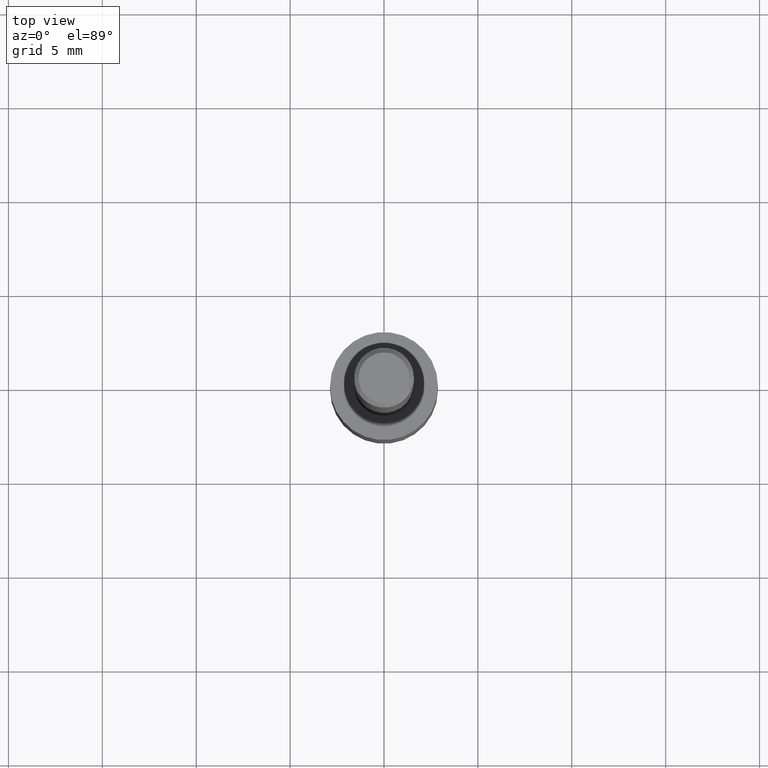
[diagram: clean part render]
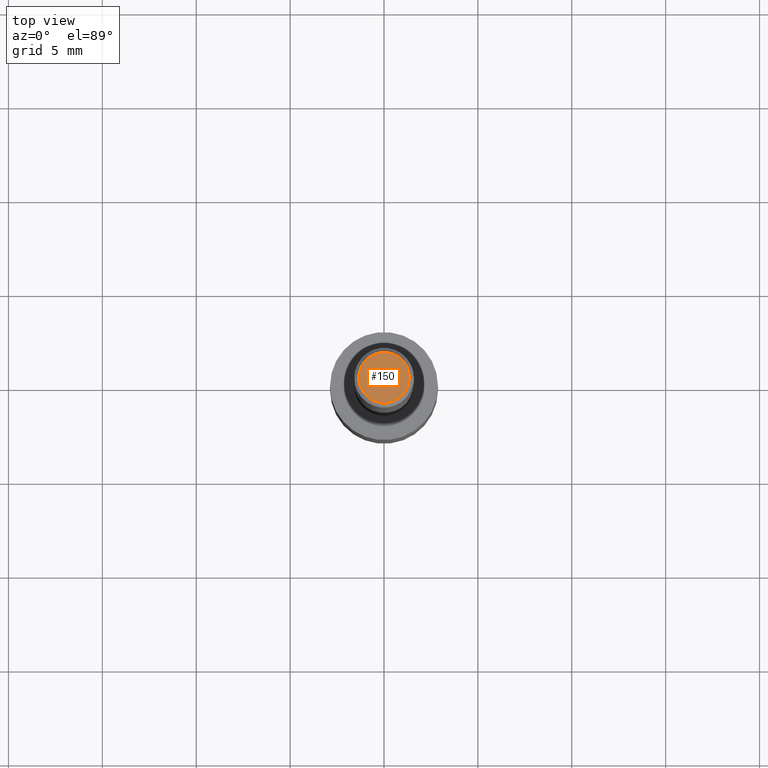
[diagram: same view with one face highlighted and labeled with its STEP entity id]
A machine part, top view. The second image highlights one B-rep face of the part: STEP entity #150.
In plain terms, the highlighted planar face has unit normal (0, -0, -1).
Its self-contained STEP definition (entity closure, byte-faithful):
#15 = AXIS2_PLACEMENT_3D ( 'NONE', #143, #297, #191 ) ;
#20 = AXIS2_PLACEMENT_3D ( 'NONE', #141, #171, #278 ) ;
#26 = EDGE_LOOP ( 'NONE', ( #97, #284 ) ) ;
#45 = VERTEX_POINT ( 'NONE', #238 ) ;
#53 = CIRCLE ( 'NONE', #20, 0.05312499999999999861 ) ;
#60 = FACE_OUTER_BOUND ( 'NONE', #26, .T. ) ;
#73 = CIRCLE ( 'NONE', #303, 0.05312499999999999861 ) ;
#91 = CARTESIAN_POINT ( 'NONE',  ( -7.487088864773345706E-50, 1.068957861474247695E-35, 3.061616997868395197E-21 ) ) ;
#97 = ORIENTED_EDGE ( 'NONE', *, *, #174, .T. ) ;
#99 = VERTEX_POINT ( 'NONE', #111 ) ;
#111 = CARTESIAN_POINT ( 'NONE',  ( 0.05312499999999999861, -4.129888592719939842E-16, 3.061617000609493422E-21 ) ) ;
#141 = CARTESIAN_POINT ( 'NONE',  ( -7.487088864773345706E-50, 1.068957861474247695E-35, 3.061616997868395197E-21 ) ) ;
#143 = CARTESIAN_POINT ( 'NONE',  ( -3.743544432386672853E-50, 5.344789307371238476E-36, 1.530808498934197599E-21 ) ) ;
#150 = ADVANCED_FACE ( 'NONE', ( #60 ), #166, .F. ) ;
#166 = PLANE ( 'NONE',  #15 ) ;
#171 = DIRECTION ( 'NONE',  ( -2.445468806185136597E-29, 3.491481338843145583E-15, 1.000000000000000000 ) ) ;
#174 = EDGE_CURVE ( 'NONE', #45, #99, #53, .T. ) ;
#191 = DIRECTION ( 'NONE',  ( -1.000000000000000000, 6.982962677686265922E-15, -4.876176775795935793E-29 ) ) ;
#230 = DIRECTION ( 'NONE',  ( -2.445468806185136597E-29, 3.491481338843145583E-15, 1.000000000000000000 ) ) ;
#238 = CARTESIAN_POINT ( 'NONE',  ( -0.05312499999999999861, 3.873362110279099094E-16, 3.061616995216862494E-21 ) ) ;
#244 = EDGE_CURVE ( 'NONE', #99, #45, #73, .T. ) ;
#253 = DIRECTION ( 'NONE',  ( 1.000000000000000000, -6.982962677686266711E-15, 4.876176628004948512E-29 ) ) ;
#278 = DIRECTION ( 'NONE',  ( 1.000000000000000000, -6.982962677686266711E-15, 4.876176628004948512E-29 ) ) ;
#284 = ORIENTED_EDGE ( 'NONE', *, *, #244, .T. ) ;
#297 = DIRECTION ( 'NONE',  ( 2.438088387897960049E-29, -3.491481338843145188E-15, -1.000000000000000000 ) ) ;
#303 = AXIS2_PLACEMENT_3D ( 'NONE', #91, #230, #253 ) ;